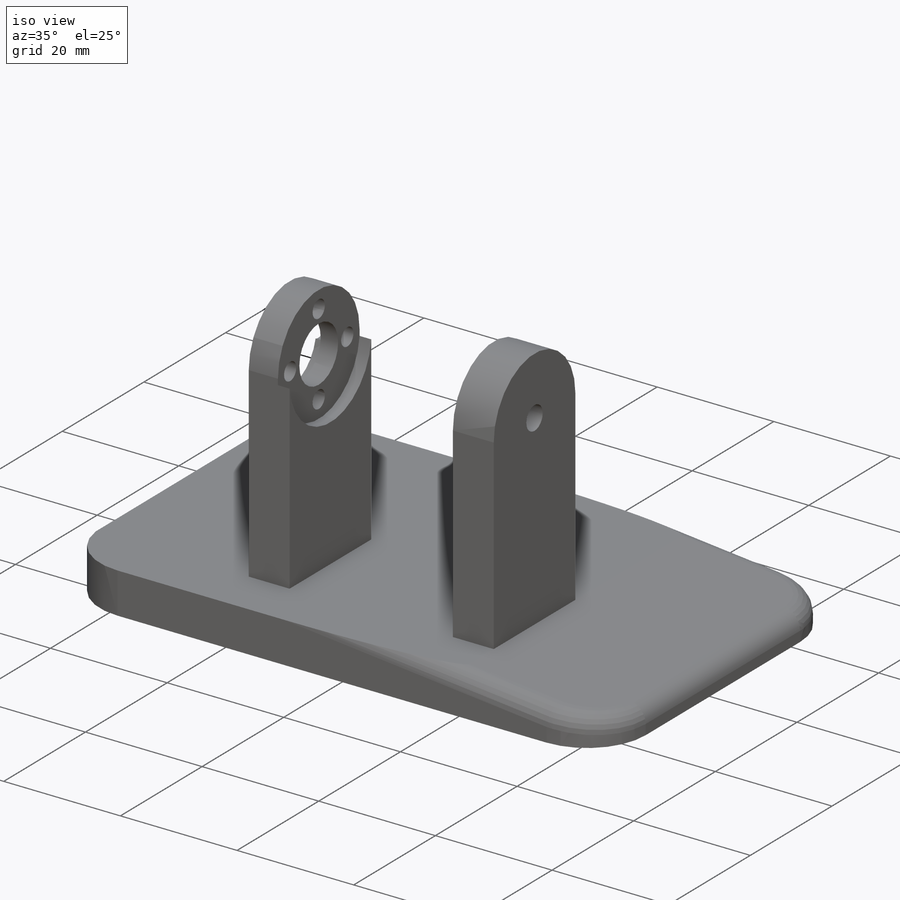
[diagram: iso view]
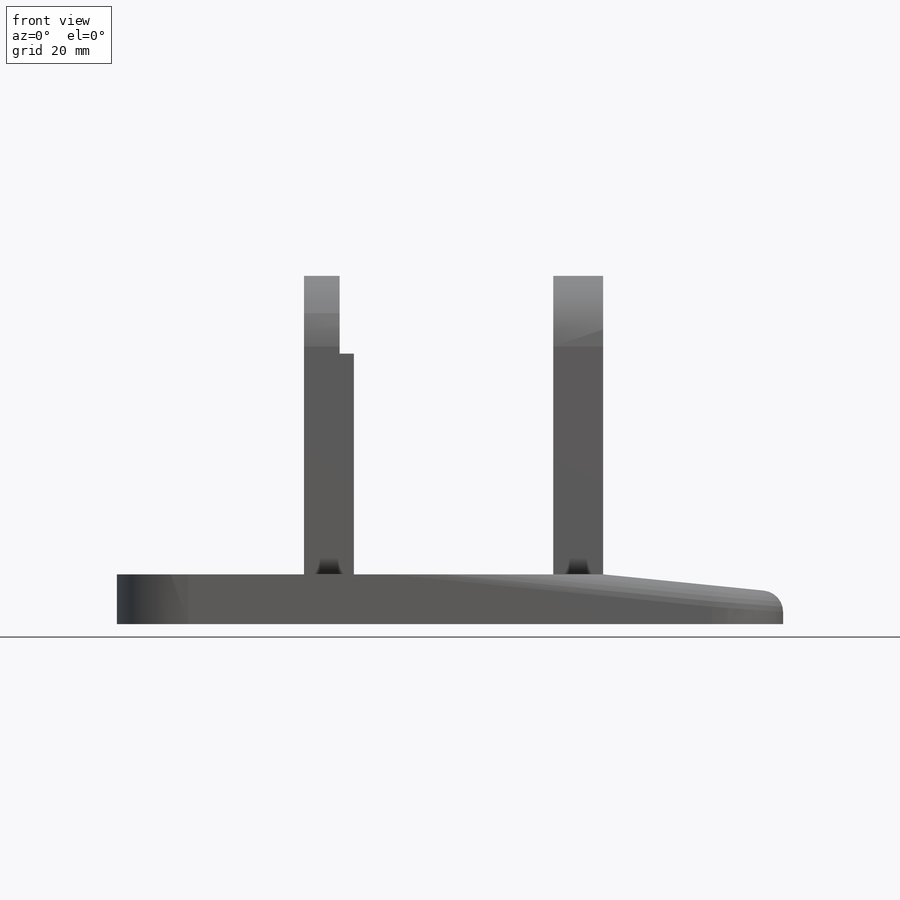
[diagram: front view]
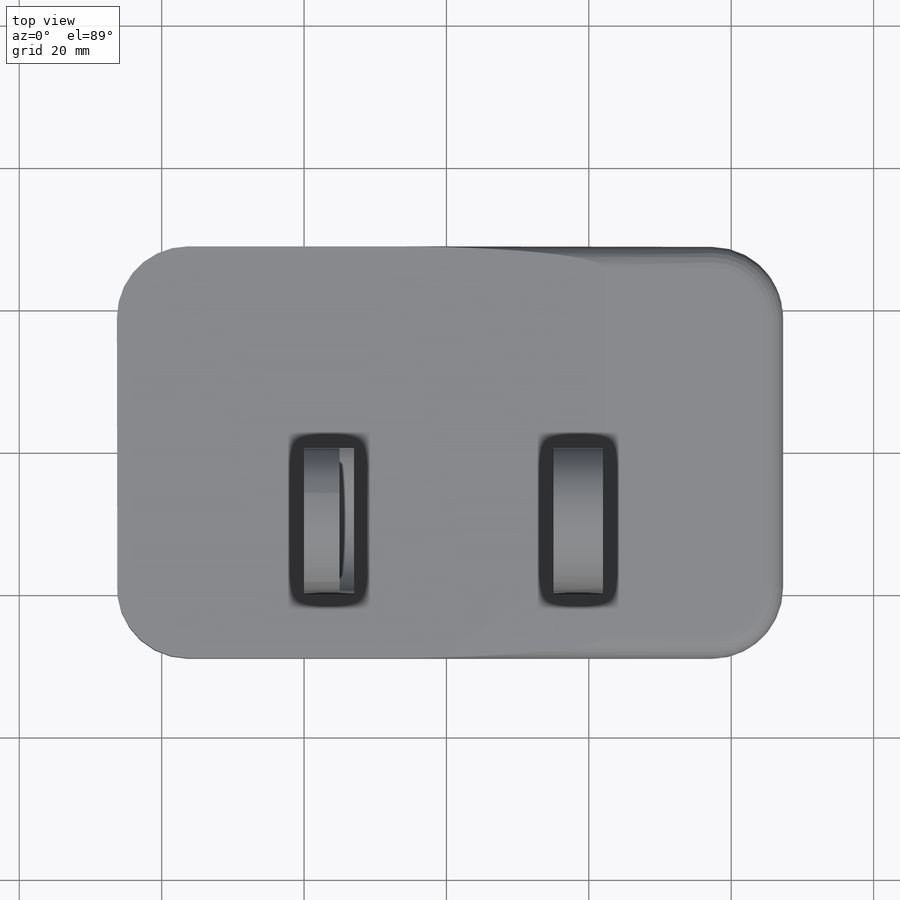
[diagram: top view]
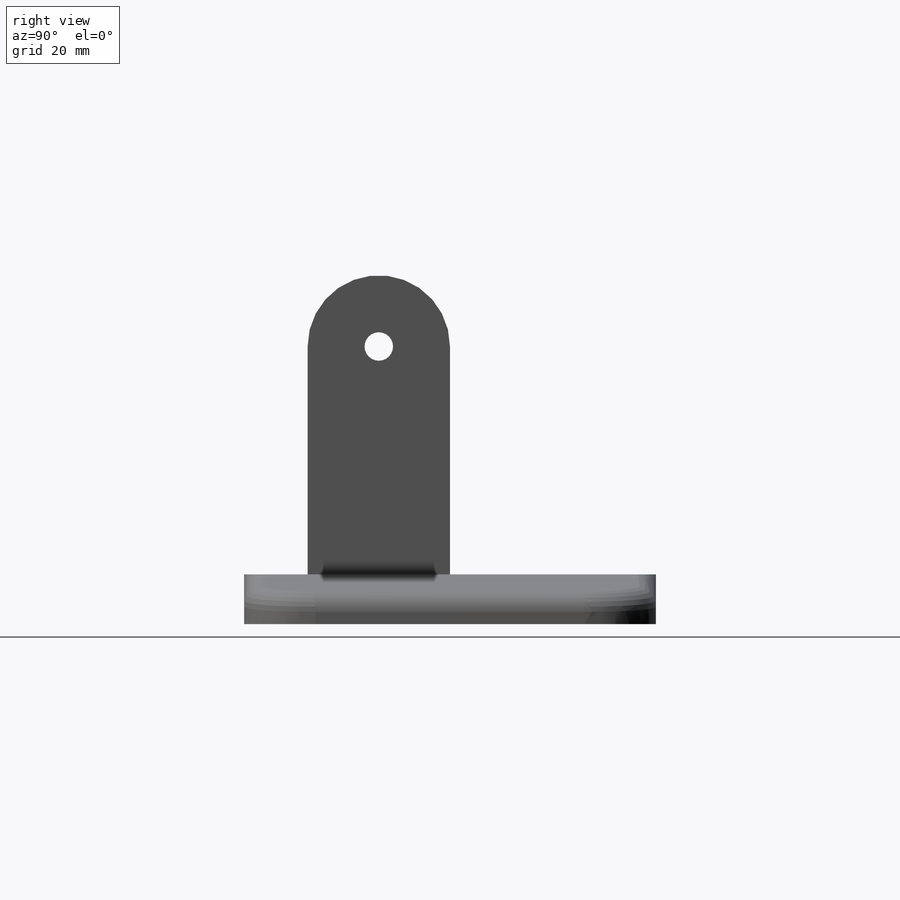
[diagram: right view]
SOLIDWORKS PART (.sldprt)
format: sldprt  version: not decoded by parser v0  size: 545,280 bytes
history: native  units: mm
features: sketch x22, cut_extrude x16, extrude x6, material x1, plane x1, mirror x1, fillet x1 (+13 scaffold rows collapsed)
feature tree (61):
  scaffold x13  (default folders/planes/origin — collapsed)
  material  "Material <sin especificar>"
  sketch  "Sketch1"  dims[D1=41.0mm]
  extrude  "Boss-Extrude2"  Depth=7mm
  sketch  "Sketch3"  dims[D1=10.0mm]
  cut_extrude  "Cut-Extrude8"  Depth=2mm
  sketch  "Sketch4"  dims[c1.D1=3.0mm c2.D1=4.0]
  cut_extrude  "Cut-Extrude9"  Depth=29mm
  sketch  "Sketch5"  dims[D1=7.0mm]
  extrude  "Boss-Extrude3"  Depth=36mm
  sketch  "Sketch6"  dims[D1=10.0mm]
  cut_extrude  "Cut-Extrude10"  Depth=36mm
  sketch  "Sketch7"  dims[D1=10.0mm]
  cut_extrude  "Cut-Extrude11"  Depth=51mm
  sketch  "Sketch8"  dims[D1=10.0mm]
  cut_extrude  "Cut-Extrude12"  Depth=2mm
  sketch  "Sketch9"  dims[D1=~4.354724mm]
  cut_extrude  "Cut-Extrude13"  Depth=3.25mm
  sketch  "Sketch10"  dims[D1=~4.742617mm]
  cut_extrude  "Cut-Extrude14"  Depth=2mm
  sketch  "Sketch11"
  cut_extrude  "Cut-Extrude15"  Depth=10mm
  sketch  "Sketch12"  dims[c1.D1=3.0mm c2.D1=4.0]
  cut_extrude  "Cut-Extrude16"  Depth=10mm
  sketch  "Sketch13"
  cut_extrude  "Cut-Extrude17"  Depth=10mm
  plane  "Plane1"  Offset=3.5mm
  mirror  "Mirror1"
  sketch  "Sketch14"
  cut_extrude  "Cut-Extrude18"  Depth=10mm
  sketch  "Sketch15"
  extrude  "Boss-Extrude4"  Depth=16mm
  sketch  "Sketch16"  dims[D1=0.0mm]
  extrude  "Boss-Extrude6"  Depth=21mm
  sketch  "Sketch18"
  cut_extrude  "Cut-Extrude21"  Depth=16mm
  sketch  "Croquis2"  dims[D1=~3.507627mm]
  cut_extrude  "Cortar-Extruir1"  Depth=3mm
  sketch  "Croquis3"  dims[D1=~5.464715mm]
  cut_extrude  "Cortar-Extruir2"  Depth=0.3mm
  sketch  "Croquis4"  dims[D1=0.0mm]
  extrude  "Saliente-Extruir1"  Depth=1mm
  sketch  "Croquis5"
  cut_extrude  "Cortar-Extruir3"  Depth=1mm
  sketch  "Croquis6"  dims[D1=57.83mm]
  extrude  "Saliente-Extruir2"  Depth=7mm
  sketch  "Croquis8"  dims[D1=4.5mm]
  cut_extrude  "Cortar-Extruir4"  Depth=76mm
  fillet  "Redondeo1"  Radius=3mm
decode coverage: 39 of 46 modeling features carry decoded parameters
note: ~ marks probable driven/reference dimensions
note: suppression state not decoded; provenance and decode notes live in map.json
